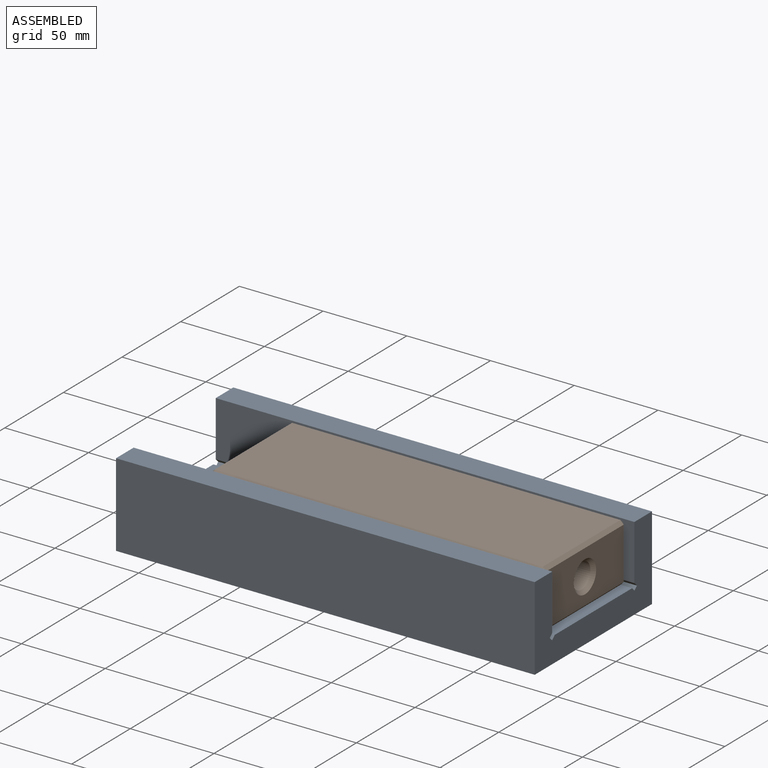
[diagram: assembled view]
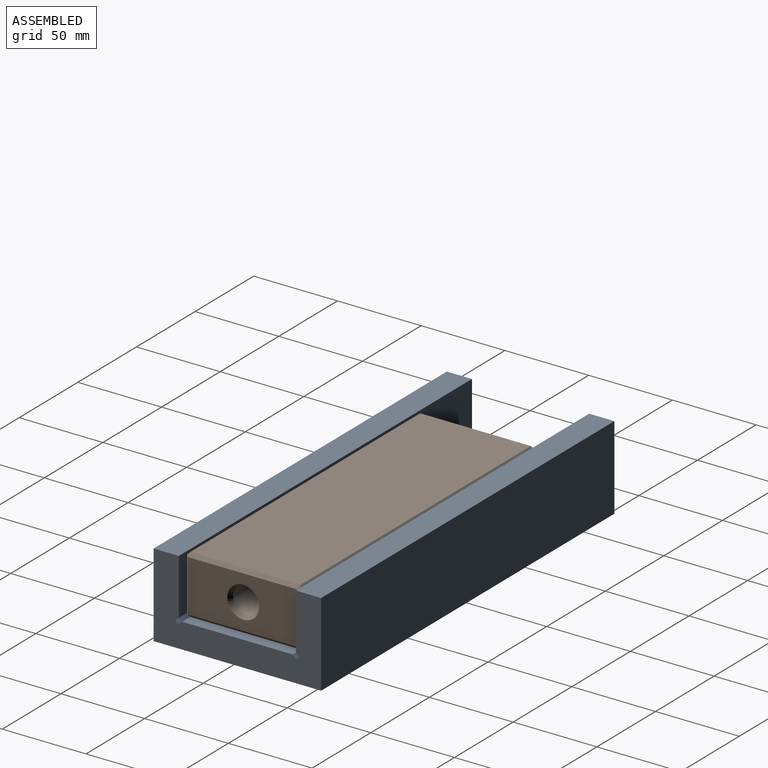
[diagram: assembled view, second angle]
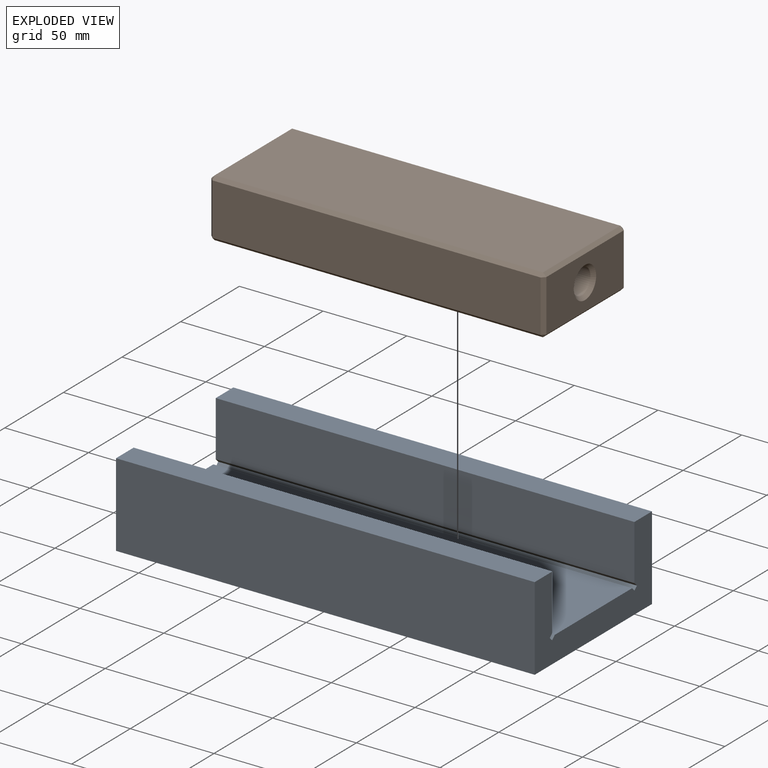
[diagram: exploded view]
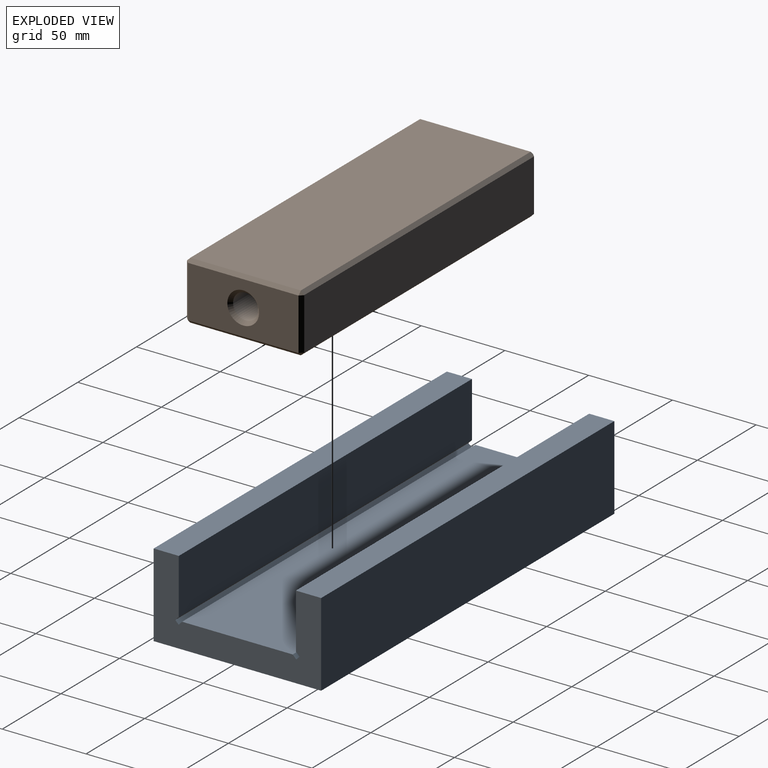
[diagram: exploded view, second angle]
ASSEMBLY  parts=2 mates=2
PART A: 16 faces, bbox 250x100x50 mm
  f0: plane 250x33mm, normal (0,1,0), area 8250mm2, adj f3,f4,f8,f13
  f1: plane 250x66mm, normal (0,0,1), area 16500mm2, adj f3,f4,f10,f15
  f2: plane 250x33mm, normal (0,-1,0), area 8250mm2, adj f3,f4,f5,f11
  f3: plane 100x50mm, normal (-1,0,0), area 2537mm2, adj f0,f1,f2,f5,f6,f7,f8,f9
  f4: plane 100x50mm, normal (1,0,0), area 2537mm2, adj f0,f1,f2,f5,f6,f7,f8,f9
  f5: plane 250x15mm, normal (0,0,1), area 3750mm2, adj f2,f3,f4,f7
  f6: plane 250x50mm, normal (0,-1,0), area 12500mm2, adj f3,f4,f8,f9
  f7: plane 250x50mm, normal (0,1,0), area 12500mm2, adj f3,f4,f5,f9
  f8: plane 250x15mm, normal (0,0,1), area 3750mm2, adj f0,f3,f4,f6
  f9: plane 250x100mm, normal (0,0,-1), area 25000mm2, adj f3,f4,f6,f7
  f10: plane 250x2.12mm, normal (0,0.71,0.71), area 750.8mm2, adj f1,f3,f4,f12
  f11: plane 250x2.12mm, normal (0,-0.71,-0.71), area 750.8mm2, adj f2,f3,f4,f12
  f12: plane 250x2mm, normal (0,-0.71,0.71), area 707.1mm2, adj f3,f4,f10,f11
  f13: plane 250x2.12mm, normal (0,0.71,-0.71), area 750.8mm2, adj f0,f3,f4,f14
  f14: plane 250x2mm, normal (0,0.71,0.71), area 707.1mm2, adj f3,f4,f13,f15
  f15: plane 250x2.12mm, normal (0,-0.71,0.71), area 750.8mm2, adj f1,f3,f4,f14
PART B: 28 faces, bbox 200x70x35 mm
  f0: plane 66x31mm, normal (-1,0,0), area 1869.3mm2, adj f6,f15,f20,f23,f26
  f1: plane 196x31mm, normal (0,-1,0), area 6076mm2, adj f10,f11,f20,f21
  f2: plane 66x31mm, normal (1,0,0), area 1762.5mm2, adj f7,f11,f12,f13,f27
  f3: plane 196x31mm, normal (0,1,0), area 6076mm2, adj f13,f14,f22,f23
  f4: plane 196x66mm, normal (0,0,1), area 12936mm2, adj f7,f10,f14,f15
  f5: plane 196x66mm, normal (0,0,-1), area 12936mm2, adj f12,f21,f22,f26
  f6: cylinder r=7.5mm len=198mm, axis (1,0,0), area 9330.5mm2, adj f0,f27
  f7: plane 66x2mm, normal (0.71,0,0.71), area 186.7mm2, adj f2,f4,f8,f9
  f8: plane 2x2mm, normal (0.58,-0.58,0.58), area 3.5mm2, adj f7,f10,f11
  f9: plane 2x2mm, normal (0.58,0.58,0.58), area 3.5mm2, adj f7,f13,f14
  f10: plane 196x2mm, normal (0,-0.71,0.71), area 554.4mm2, adj f1,f4,f8,f16
  f11: plane 31x2mm, normal (0.71,-0.71,0), area 87.7mm2, adj f1,f2,f8,f17
  f12: plane 66x2mm, normal (0.71,0,-0.71), area 186.7mm2, adj f2,f5,f17,f18
  f13: plane 31x2mm, normal (0.71,0.71,0), area 87.7mm2, adj f2,f3,f9,f18
  f14: plane 196x2mm, normal (0,0.71,0.71), area 554.4mm2, adj f3,f4,f9,f19
  f15: plane 66x2mm, normal (-0.71,0,0.71), area 186.7mm2, adj f0,f4,f16,f19
  f16: plane 2x2mm, normal (-0.58,-0.58,0.58), area 3.5mm2, adj f10,f15,f20
  f17: plane 2x2mm, normal (0.58,-0.58,-0.58), area 3.5mm2, adj f11,f12,f21
  f18: plane 2x2mm, normal (0.58,0.58,-0.58), area 3.5mm2, adj f12,f13,f22
  f19: plane 2x2mm, normal (-0.58,0.58,0.58), area 3.5mm2, adj f14,f15,f23
  f20: plane 31x2mm, normal (-0.71,-0.71,0), area 87.7mm2, adj f0,f1,f16,f24
  f21: plane 196x2mm, normal (0,-0.71,-0.71), area 554.4mm2, adj f1,f5,f17,f24
  f22: plane 196x2mm, normal (0,0.71,-0.71), area 554.4mm2, adj f3,f5,f18,f25
  f23: plane 31x2mm, normal (-0.71,0.71,0), area 87.7mm2, adj f0,f3,f19,f25
  f24: plane 2x2mm, normal (-0.58,-0.58,-0.58), area 3.5mm2, adj f20,f21,f26
  f25: plane 2x2mm, normal (-0.58,0.58,-0.58), area 3.5mm2, adj f22,f23,f26
  f26: plane 66x2mm, normal (-0.71,0,-0.71), area 186.7mm2, adj f0,f5,f24,f25
  f27: cone r=7.5mm half-angle=45deg, axis (1,0,0), area 151.1mm2, adj f2,f6
PLACE A t=(-18.66,7.33,47.07)mm fixed
PLACE B t=(26.37,22.33,62.07)mm
MATE planar A.f1 <-> B.f5  axis (0,0,1) through (106.34,57.33,62.07)mm
MATE planar B.f1 <-> A.f0  axis (0,-1,0) through (126.37,22.33,79.57)mm
